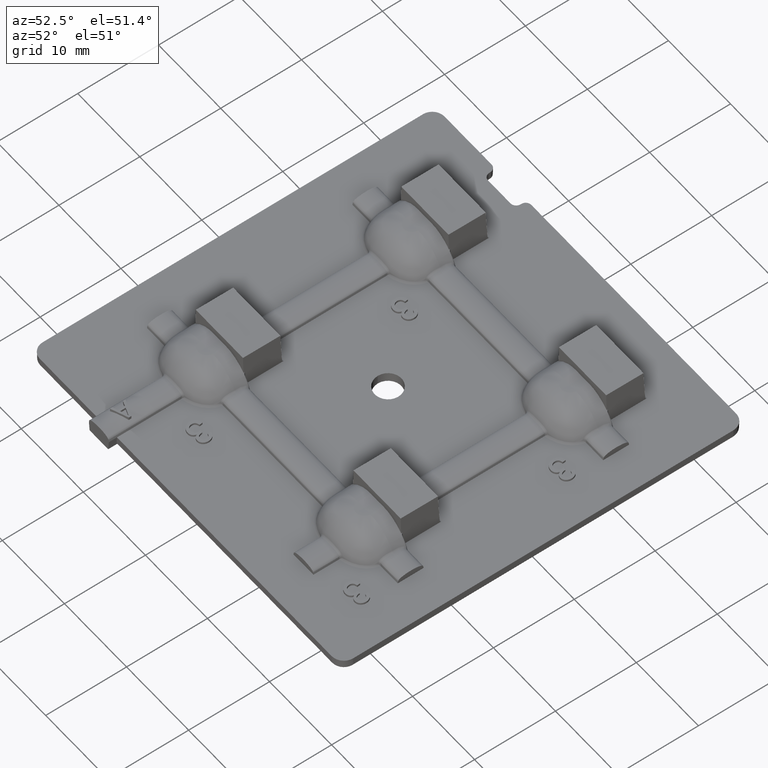
[diagram: clean part render]
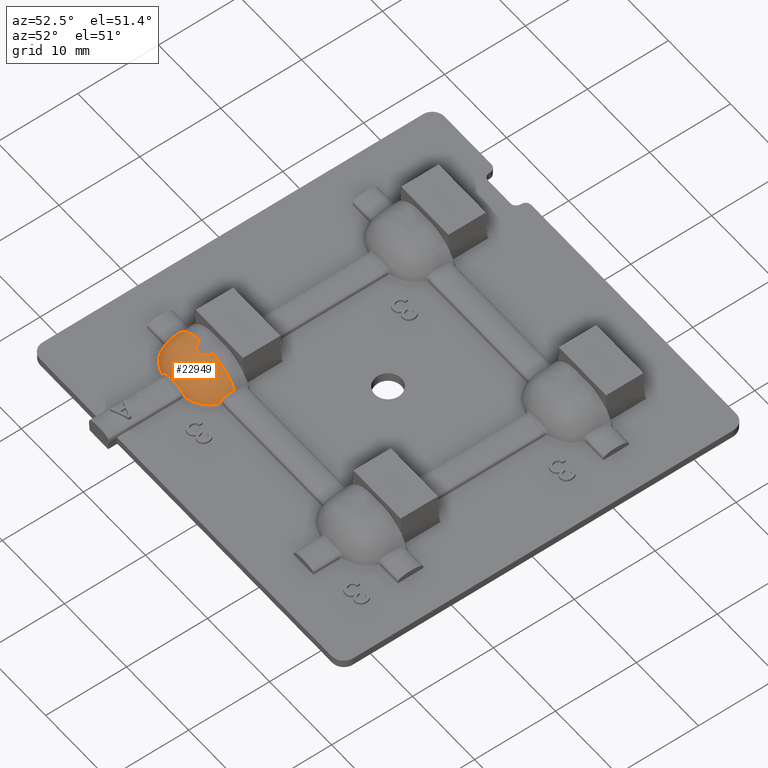
[diagram: same view with one face highlighted and labeled with its STEP entity id]
A machine part, auxiliary view. The second image highlights one B-rep face of the part: STEP entity #22949.
In plain terms, the highlighted face is a freeform B-spline surface patch.
Its self-contained STEP definition (entity closure, byte-faithful):
#143 = CARTESIAN_POINT ( 'NONE',  ( -12.43749215839888400, -13.69999774898290400, 4.399784544075322900 ) ) ;
#275 = CARTESIAN_POINT ( 'NONE',  ( -15.06595796831597900, -16.61086628397175200, 1.392148092561917000 ) ) ;
#367 = CARTESIAN_POINT ( 'NONE',  ( -13.66918963215767100, -12.95761248539483800, 4.400000000000001200 ) ) ;
#460 = CARTESIAN_POINT ( 'NONE',  ( -16.10104831315678800, -14.94880724650813700, 4.288021521516926200 ) ) ;
#560 = CARTESIAN_POINT ( 'NONE',  ( -13.96148661160987100, -17.04307346552607800, 2.542874125920664900 ) ) ;
#648 = CARTESIAN_POINT ( 'NONE',  ( -11.45747269431418200, -17.05256596988752800, 0.2000000000000022600 ) ) ;
#745 = CARTESIAN_POINT ( 'NONE',  ( -11.81173758152823400, -13.16148436075290300, 4.400000000000004800 ) ) ;
#798 = CARTESIAN_POINT ( 'NONE',  ( -8.990662189987235200, -15.78775470054132800, 1.386657370514009500 ) ) ;
#834 = CARTESIAN_POINT ( 'NONE',  ( -9.456544817270359000, -13.25463290698096600, 4.366357422317730800 ) ) ;
#906 = CARTESIAN_POINT ( 'NONE',  ( -8.202374835301103700, -14.41976141333100600, 1.477068846094768700 ) ) ;
#1081 = ORIENTED_EDGE ( 'NONE', *, *, #25119, .T. ) ;
#1484 = VERTEX_POINT ( 'NONE', #16504 ) ;
#1899 = CARTESIAN_POINT ( 'NONE',  ( -8.253848618063608800, -14.25607833452763300, 1.751718455772700800 ) ) ;
#2134 = CARTESIAN_POINT ( 'NONE',  ( -10.96157245102402000, -16.76510965602518200, 1.493884396673184700 ) ) ;
#2156 = ORIENTED_EDGE ( 'NONE', *, *, #11121, .F. ) ;
#2251 = CARTESIAN_POINT ( 'NONE',  ( -12.17734945908384200, -13.59184172140132300, 4.399704041028616800 ) ) ;
#2301 = CARTESIAN_POINT ( 'NONE',  ( -17.12110019471691700, -14.73870700213821800, 1.379381091858283800 ) ) ;
#2304 = CARTESIAN_POINT ( 'NONE',  ( -13.70000005894078600, -12.70000026282877700, 4.399899496562288600 ) ) ;
#2371 = EDGE_CURVE ( 'NONE', #1484, #23416, #13131, .T. ) ;
#2398 = CARTESIAN_POINT ( 'NONE',  ( -14.45664289320486500, -16.78518610639559900, 1.394284250590120700 ) ) ;
#2495 = CARTESIAN_POINT ( 'NONE',  ( -17.49777523247420400, -14.01050357524347900, 2.093776231945073000 ) ) ;
#2579 = CARTESIAN_POINT ( 'NONE',  ( -16.84783609921427300, -15.57791420905986600, 0.2000000000000022600 ) ) ;
#2670 = CARTESIAN_POINT ( 'NONE',  ( -12.78726641383264000, -13.70000000000000600, 4.400000000000003000 ) ) ;
#2764 = CARTESIAN_POINT ( 'NONE',  ( -10.43856545403480300, -15.62028915319846500, 4.310754748777506900 ) ) ;
#2845 = CARTESIAN_POINT ( 'NONE',  ( -8.273044165719992900, -15.01386249380409900, 1.878000377268276700 ) ) ;
#2902 = CARTESIAN_POINT ( 'NONE',  ( -8.416329171034147900, -15.02684879881821400, 1.381510598407341300 ) ) ;
#2914 = VERTEX_POINT ( 'NONE', #18358 ) ;
#2937 = CARTESIAN_POINT ( 'NONE',  ( -7.720854712020560000, -13.36479265166322600, 0.2000000000000022600 ) ) ;
#3214 = ORIENTED_EDGE ( 'NONE', *, *, #6714, .F. ) ;
#3290 = VERTEX_POINT ( 'NONE', #11087 ) ;
#3325 = EDGE_CURVE ( 'NONE', #20411, #1484, #16621, .T. ) ;
#3492 = CARTESIAN_POINT ( 'NONE',  ( -13.83124642636141900, -16.73002394464879200, 1.995828089385227800 ) ) ;
#3495 = CARTESIAN_POINT ( 'NONE',  ( -11.70000008946625800, -12.70000348917988700, 4.399847215909710000 ) ) ;
#3581 = ORIENTED_EDGE ( 'NONE', *, *, #12846, .T. ) ;
#3587 = CARTESIAN_POINT ( 'NONE',  ( -13.98481480958493600, -16.72497055709726200, 1.939514170238045600 ) ) ;
#3633 = CARTESIAN_POINT ( 'NONE',  ( -14.06103970265316900, -16.72301514700637900, 1.905620839005102200 ) ) ;
#3884 = CARTESIAN_POINT ( 'NONE',  ( -8.175298265472323000, -14.43692834525180900, 1.377734322004338300 ) ) ;
#3988 = CARTESIAN_POINT ( 'NONE',  ( -8.256747050645136800, -13.98000862053931400, 1.927663600121006100 ) ) ;
#4092 = ORIENTED_EDGE ( 'NONE', *, *, #16233, .F. ) ;
#4309 = CARTESIAN_POINT ( 'NONE',  ( -10.94943895658807300, -16.77883971450397400, 1.427550278124105000 ) ) ;
#4345 = CARTESIAN_POINT ( 'NONE',  ( -11.82581169962165600, -13.20290863772976700, 4.399705069793914600 ) ) ;
#4496 = CARTESIAN_POINT ( 'NONE',  ( -17.69999999999999900, -12.70000000000000500, 0.2000000000000022600 ) ) ;
#4585 = CARTESIAN_POINT ( 'NONE',  ( -13.62726864026860000, -13.08205620946785600, 4.400000000000004800 ) ) ;
#4676 = CARTESIAN_POINT ( 'NONE',  ( -15.80132585419174300, -15.33644303003360700, 4.287562336733507200 ) ) ;
#4711 = B_SPLINE_CURVE_WITH_KNOTS ( 'NONE', 3,
 ( #16329, #16079, #17993, #16046 ),
 .UNSPECIFIED., .F., .F.,
 ( 4, 4 ),
 ( 1.301042606982595900E-018, 0.0001032233284219956800 ),
 .UNSPECIFIED. ) ;
#4731 = CARTESIAN_POINT ( 'NONE',  ( -10.96157245102402000, -16.76510965602518200, 1.493884396673184700 ) ) ;
#4768 = CARTESIAN_POINT ( 'NONE',  ( -13.12071680670491200, -17.09999994122215800, 2.653333232968669600 ) ) ;
#4822 = EDGE_CURVE ( 'NONE', #10026, #10665, #22941, .T. ) ;
#4861 = CARTESIAN_POINT ( 'NONE',  ( -10.24382373503792500, -16.77730372870986700, 0.2000000000000022600 ) ) ;
#4871 = EDGE_CURVE ( 'NONE', #2914, #10026, #4711, .T. ) ;
#4902 = VERTEX_POINT ( 'NONE', #15638 ) ;
#4943 = CARTESIAN_POINT ( 'NONE',  ( -11.77273138819485300, -13.08205627545143600, 4.400000000000003000 ) ) ;
#5001 = CARTESIAN_POINT ( 'NONE',  ( -8.175298265472323000, -14.43692834525180900, 1.377734322004338300 ) ) ;
#5037 = CARTESIAN_POINT ( 'NONE',  ( -9.615285220660691600, -12.88486047766554600, 4.388785807439241200 ) ) ;
#5215 = ORIENTED_EDGE ( 'NONE', *, *, #12184, .T. ) ;
#5771 = B_SPLINE_CURVE_WITH_KNOTS ( 'NONE', 3,
 ( #12228, #14278, #6168, #20339, #8191, #22369, #10265, #24395 ),
 .UNSPECIFIED., .F., .F.,
 ( 4, 2, 2, 4 ),
 ( 0.0000000000000000000, 0.4120684121976059800, 0.8241368243952119600, 1.648273648790419900 ),
 .UNSPECIFIED. ) ;
#5851 = CARTESIAN_POINT ( 'NONE',  ( -17.22470180933332500, -14.43692833753385200, 1.377734330437526500 ) ) ;
#6010 = CARTESIAN_POINT ( 'NONE',  ( -8.232238360579975400, -13.50816285962561700, 2.053588351499695100 ) ) ;
#6168 = CARTESIAN_POINT ( 'NONE',  ( -13.67413220244340100, -12.96106193709754500, 4.399771922401212600 ) ) ;
#6343 = CARTESIAN_POINT ( 'NONE',  ( -11.70000048133620400, -12.83051076903109200, 4.399731693037543000 ) ) ;
#6402 = CARTESIAN_POINT ( 'NONE',  ( -13.69999999999999900, -12.70000000000000500, 4.400000000000004800 ) ) ;
#6450 = CARTESIAN_POINT ( 'NONE',  ( -17.22470180933332500, -14.43692833753385200, 1.377734330437526500 ) ) ;
#6484 = CARTESIAN_POINT ( 'NONE',  ( -15.78471482431140200, -12.88486049162026400, 4.388785805841323800 ) ) ;
#6570 = CARTESIAN_POINT ( 'NONE',  ( -17.31155056179203900, -14.63168747808980400, 1.935125871910845100 ) ) ;
#6616 = CARTESIAN_POINT ( 'NONE',  ( -17.21606636490827600, -14.43118479641489000, 1.410946040232075700 ) ) ;
#6647 = CARTESIAN_POINT ( 'NONE',  ( -16.27546755874895700, -16.20312649830771800, 0.2000000000000022600 ) ) ;
#6714 = EDGE_CURVE ( 'NONE', #9415, #14658, #23732, .T. ) ;
#6731 = CARTESIAN_POINT ( 'NONE',  ( -12.61273348997574600, -13.70000000000000600, 4.400000000000004800 ) ) ;
#6825 = CARTESIAN_POINT ( 'NONE',  ( -9.598673635718808900, -15.33644335871178300, 4.287562316111323200 ) ) ;
#6874 = CARTESIAN_POINT ( 'NONE',  ( -17.19762524394012700, -14.41976140544873500, 1.477068853850179500 ) ) ;
#6896 = B_SPLINE_CURVE_WITH_KNOTS ( 'NONE', 3,
 ( #16514, #2301, #8439, #22612, #10506, #24638, #12552, #275, #14600, #2398 ),
 .UNSPECIFIED., .F., .F.,
 ( 4, 2, 2, 2, 4 ),
 ( 0.0000000000000000000, 0.0009515497106641801700, 0.001903099421328360300, 0.002854649131992540500, 0.003806198842656725900 ),
 .UNSPECIFIED. ) ;
#6907 = CARTESIAN_POINT ( 'NONE',  ( -8.088449578348033200, -14.63168742656796100, 1.935125940144107700 ) ) ;
#6991 = CARTESIAN_POINT ( 'NONE',  ( -7.699999999999998400, -12.92154611096210800, 0.2000000000000022600 ) ) ;
#7027 = CARTESIAN_POINT ( 'NONE',  ( -8.200228256821901600, -12.70000000000000500, 2.116769539470084300 ) ) ;
#7402 = ORIENTED_EDGE ( 'NONE', *, *, #4871, .T. ) ;
#8012 = CARTESIAN_POINT ( 'NONE',  ( -8.214267783851481000, -13.10616316763442600, 2.101234485628416900 ) ) ;
#8191 = CARTESIAN_POINT ( 'NONE',  ( -13.50022653145815000, -13.31379918004842900, 4.399760891849290100 ) ) ;
#8439 = CARTESIAN_POINT ( 'NONE',  ( -16.98399521031473100, -15.02697877503641500, 1.381512082924119600 ) ) ;
#8447 = VERTEX_POINT ( 'NONE', #20129 ) ;
#8527 = CARTESIAN_POINT ( 'NONE',  ( -17.69999999999999900, -12.92154619007213200, 0.2000000000000022600 ) ) ;
#8615 = CARTESIAN_POINT ( 'NONE',  ( -13.58826243476650400, -13.16148433252958200, 4.400000000000004800 ) ) ;
#8662 = FACE_OUTER_BOUND ( 'NONE', #17046, .T. ) ;
#8698 = CARTESIAN_POINT ( 'NONE',  ( -14.96143384727281700, -15.62028888134772900, 4.310754746135072100 ) ) ;
#8792 = CARTESIAN_POINT ( 'NONE',  ( -12.27928272954934400, -17.10000005877791900, 2.653333433698229300 ) ) ;
#8881 = CARTESIAN_POINT ( 'NONE',  ( -9.124532327418943800, -16.20312648573786200, 0.2000000000000022600 ) ) ;
#8926 = CARTESIAN_POINT ( 'NONE',  ( -10.94335708462761400, -16.78518633064484800, 1.394284285829841400 ) ) ;
#8963 = CARTESIAN_POINT ( 'NONE',  ( -11.73081038673850400, -12.95761255917689400, 4.400000000000004800 ) ) ;
#9059 = CARTESIAN_POINT ( 'NONE',  ( -9.699999999999997500, -12.70000000000000500, 4.399999999999995900 ) ) ;
#9415 = VERTEX_POINT ( 'NONE', #3495 ) ;
#9469 = CARTESIAN_POINT ( 'NONE',  ( -17.19762524394012700, -14.41976140544873500, 1.477068853850179500 ) ) ;
#9506 = CARTESIAN_POINT ( 'NONE',  ( -17.17769846950174500, -14.39932969445162700, 1.555136975677740000 ) ) ;
#9534 = CARTESIAN_POINT ( 'NONE',  ( -17.16275288937904300, -14.36159867838678200, 1.628521162607742500 ) ) ;
#9587 = CARTESIAN_POINT ( 'NONE',  ( -17.14602615902248700, -14.25471544597203000, 1.753009278442049700 ) ) ;
#9621 = CARTESIAN_POINT ( 'NONE',  ( -17.14340842695304800, -14.18888036856280400, 1.803639774821244500 ) ) ;
#9646 = CARTESIAN_POINT ( 'NONE',  ( -17.14337435557811400, -13.97654638217014300, 1.929176188397404800 ) ) ;
#9682 = CARTESIAN_POINT ( 'NONE',  ( -17.15232887310411800, -13.81783220740046600, 1.979736724485238400 ) ) ;
#9724 = CARTESIAN_POINT ( 'NONE',  ( -17.16798402162181200, -13.50376344160531700, 2.054350707340398200 ) ) ;
#9747 = CARTESIAN_POINT ( 'NONE',  ( -17.17579013770457400, -13.34470467261187400, 2.077920953282488700 ) ) ;
#9782 = CARTESIAN_POINT ( 'NONE',  ( -17.18914352416137700, -13.02415366919275600, 2.109190517025050200 ) ) ;
#9835 = CARTESIAN_POINT ( 'NONE',  ( -17.19976240379727300, -12.70000000000000500, 2.116763795967285600 ) ) ;
#10011 = CARTESIAN_POINT ( 'NONE',  ( -17.19486910041552400, -12.86090691566398000, 2.116555577738134200 ) ) ;
#10013 = CARTESIAN_POINT ( 'NONE',  ( -8.192960502807743200, -14.42546183968453000, 1.444061992918546100 ) ) ;
#10026 = VERTEX_POINT ( 'NONE', #25087 ) ;
#10108 = CARTESIAN_POINT ( 'NONE',  ( -8.205363164702657000, -12.86259821634707000, 2.114726627202968800 ) ) ;
#10265 = CARTESIAN_POINT ( 'NONE',  ( -12.96259697139794700, -13.69999457719452500, 4.399894056658403900 ) ) ;
#10506 = CARTESIAN_POINT ( 'NONE',  ( -16.40651947271352600, -15.79027440243628200, 1.386672212341433700 ) ) ;
#10597 = CARTESIAN_POINT ( 'NONE',  ( -15.94345531512595600, -13.25463295019792500, 4.366357417523982300 ) ) ;
#10665 = VERTEX_POINT ( 'NONE', #4731 ) ;
#10689 = CARTESIAN_POINT ( 'NONE',  ( -17.12695594946694300, -15.01386240226511500, 1.878000346942378700 ) ) ;
#10772 = CARTESIAN_POINT ( 'NONE',  ( -15.15617672385181300, -16.77730351579214800, 0.2000000000000022600 ) ) ;
#10863 = CARTESIAN_POINT ( 'NONE',  ( -12.43776476145339200, -13.67701030261937200, 4.400000000000004800 ) ) ;
#10955 = CARTESIAN_POINT ( 'NONE',  ( -9.298951531670297800, -14.94880743451142300, 4.288021507226763300 ) ) ;
#11012 = CARTESIAN_POINT ( 'NONE',  ( -10.33281264477713200, -16.61054476721551500, 1.392143954843056800 ) ) ;
#11054 = CARTESIAN_POINT ( 'NONE',  ( -7.902224926342883600, -14.01050344787140900, 2.093776305864436500 ) ) ;
#11087 = CARTESIAN_POINT ( 'NONE',  ( -13.70000005894078600, -12.70000026282877700, 4.399899496562288600 ) ) ;
#11121 = EDGE_CURVE ( 'NONE', #3290, #4902, #5771, .T. ) ;
#11135 = CARTESIAN_POINT ( 'NONE',  ( -7.699999999999998400, -12.70000000000000500, 0.2000000000000022600 ) ) ;
#11391 = EDGE_CURVE ( 'NONE', #8447, #14658, #11633, .T. ) ;
#11633 = B_SPLINE_CURVE_WITH_KNOTS ( 'NONE', 3,
 ( #906, #12052, #14094, #1899, #16131, #3988, #18150, #6010, #20178, #8012, #22194, #10108, #24224, #12140 ),
 .UNSPECIFIED., .F., .F.,
 ( 4, 2, 2, 2, 2, 2, 4 ),
 ( 0.0000000000000000000, 0.0002478455170098596800, 0.0004956910340197193700, 0.0009913820680394387400, 0.001487073102059158200, 0.001734918619069020200, 0.001982764136078882200 ),
 .UNSPECIFIED. ) ;
#12052 = CARTESIAN_POINT ( 'NONE',  ( -8.222187065973862700, -14.39944715212693500, 1.554688200758558500 ) ) ;
#12140 = CARTESIAN_POINT ( 'NONE',  ( -8.200228256821901600, -12.70000000000000500, 2.116769539470084300 ) ) ;
#12143 = EDGE_CURVE ( 'NONE', #10665, #22570, #12627, .T. ) ;
#12184 = EDGE_CURVE ( 'NONE', #23416, #2914, #6896, .T. ) ;
#12228 = CARTESIAN_POINT ( 'NONE',  ( -13.70000005894078600, -12.70000026282877700, 4.399899496562288600 ) ) ;
#12552 = CARTESIAN_POINT ( 'NONE',  ( -15.64277959787312100, -16.34843472545619400, 1.390049678317170700 ) ) ;
#12627 = B_SPLINE_CURVE_WITH_KNOTS ( 'NONE', 3,
 ( #2134, #14425, #4309, #18481 ),
 .UNSPECIFIED., .F., .F.,
 ( 4, 4 ),
 ( 2.168404344970993500E-019, 0.0001032233235114298800 ),
 .UNSPECIFIED. ) ;
#12647 = CARTESIAN_POINT ( 'NONE',  ( -17.67914527199916800, -13.36479289304253700, 0.2000000000000022600 ) ) ;
#12730 = CARTESIAN_POINT ( 'NONE',  ( -13.52281258836787000, -13.27484679183959500, 4.400000000000003000 ) ) ;
#12817 = CARTESIAN_POINT ( 'NONE',  ( -13.88637727979307000, -15.70375811814597400, 4.339407152786908000 ) ) ;
#12846 = EDGE_CURVE ( 'NONE', #22570, #21831, #13949, .T. ) ;
#12905 = CARTESIAN_POINT ( 'NONE',  ( -11.43851309295266600, -17.04307383270338900, 2.542874484596963700 ) ) ;
#12994 = CARTESIAN_POINT ( 'NONE',  ( -8.552163814679440500, -15.57791407060912900, 0.2000000000000022600 ) ) ;
#13040 = CARTESIAN_POINT ( 'NONE',  ( -9.482196941146467500, -16.18534140222168800, 1.389016397712826900 ) ) ;
#13078 = CARTESIAN_POINT ( 'NONE',  ( -11.70560637692213200, -12.82967397667050200, 4.400000000000004800 ) ) ;
#13131 = B_SPLINE_CURVE_WITH_KNOTS ( 'NONE', 3,
 ( #6874, #22920, #6616, #6450 ),
 .UNSPECIFIED., .F., .F.,
 ( 4, 4 ),
 ( 0.0000000000000000000, 0.0001043800339735807400 ),
 .UNSPECIFIED. ) ;
#13185 = CARTESIAN_POINT ( 'NONE',  ( -8.200228256821901600, -12.70000000000000500, 2.116769539470084300 ) ) ;
#13209 = CARTESIAN_POINT ( 'NONE',  ( -8.318346879614072300, -12.70000000000000600, 2.341761078581415100 ) ) ;
#13217 = CARTESIAN_POINT ( 'NONE',  ( -8.462569520922073700, -12.70000000000000500, 2.553963216746706800 ) ) ;
#13246 = CARTESIAN_POINT ( 'NONE',  ( -8.688936779519639900, -12.70000000000000500, 2.887028925773853100 ) ) ;
#13275 = CARTESIAN_POINT ( 'NONE',  ( -8.970732435953163300, -12.70000000000000500, 3.174684623714169300 ) ) ;
#13280 = CARTESIAN_POINT ( 'NONE',  ( -9.249323211014337100, -12.70000000000000500, 3.459068793627218900 ) ) ;
#13304 = CARTESIAN_POINT ( 'NONE',  ( -9.570053847210410000, -12.70000000000000500, 3.686062137185702500 ) ) ;
#13356 = CARTESIAN_POINT ( 'NONE',  ( -9.890652832668873600, -12.70000000000000500, 3.912962306479713900 ) ) ;
#13389 = CARTESIAN_POINT ( 'NONE',  ( -10.23903685780654800, -12.70000000000000500, 4.071667347089793900 ) ) ;
#13397 = CARTESIAN_POINT ( 'NONE',  ( -10.59108209338049100, -12.70000000000000500, 4.232040238430814200 ) ) ;
#13421 = CARTESIAN_POINT ( 'NONE',  ( -11.70000008946625800, -12.70000348917988700, 4.399847215909710000 ) ) ;
#13451 = CARTESIAN_POINT ( 'NONE',  ( -11.32846510539708400, -12.70000000000000500, 4.399735882007879800 ) ) ;
#13596 = CARTESIAN_POINT ( 'NONE',  ( -10.95618457085425800, -12.70000000000000500, 4.315071843354966000 ) ) ;
#13949 = B_SPLINE_CURVE_WITH_KNOTS ( 'NONE', 3,
 ( #8926, #21057, #11012, #25131, #13040, #798, #15083, #2902, #17093, #5001 ),
 .UNSPECIFIED., .F., .F.,
 ( 4, 2, 2, 2, 4 ),
 ( 0.0000000000000000000, 0.0009512693086330179400, 0.001902538617266035900, 0.002853807925899047000, 0.003805077234532058300 ),
 .UNSPECIFIED. ) ;
#14094 = CARTESIAN_POINT ( 'NONE',  ( -8.237082884510101600, -14.36207668350260700, 1.627662690096569400 ) ) ;
#14278 = CARTESIAN_POINT ( 'NONE',  ( -13.70000001249813500, -12.83055217458182500, 4.399930701707979200 ) ) ;
#14402 = B_SPLINE_SURFACE_WITH_KNOTS ( 'NONE', 3, 3, ( 
 ( #6402, #18577, #16601, #4496 ),
 ( #18668, #6484, #20668, #8527 ),
 ( #22707, #10597, #24724, #12647 ),
 ( #367, #14689, #2495, #16695 ),
 ( #4585, #18742, #6570, #20751 ),
 ( #8615, #22782, #10689, #24807 ),
 ( #12730, #460, #14775, #2579 ),
 ( #16776, #4676, #18826, #6647 ),
 ( #20846, #8698, #22870, #10772 ),
 ( #24902, #12817, #560, #14860 ),
 ( #2670, #16861, #4768, #18910 ),
 ( #6731, #20927, #8792, #22948 ),
 ( #10863, #24988, #12905, #648 ),
 ( #14948, #2764, #16949, #4861 ),
 ( #19003, #6825, #21007, #8881 ),
 ( #23042, #10955, #25075, #12994 ),
 ( #745, #15035, #2845, #17041 ),
 ( #4943, #19085, #6907, #21101 ),
 ( #8963, #23119, #11054, #25166 ),
 ( #13078, #834, #15126, #2937 ),
 ( #17134, #5037, #19172, #6991 ),
 ( #21184, #9059, #23215, #11135 ) ),
 .UNSPECIFIED., .F., .F., .F.,
 ( 4, 1, 1, 1, 2, 1, 1, 1, 2, 1, 1, 1, 2, 1, 1, 1, 4 ),
 ( 4, 4 ),
 ( 0.0000000000000000000, 0.04246958582425625100, 0.08493917164851250100, 0.1274087574727687500, 0.1698783432970250000, 0.2524087121481795000, 0.3349390809993338900, 0.4174694498504881700, 0.4999998187016426700, 0.5825302785239836500, 0.6650607383463246200, 0.7475911981686654800, 0.8301216579910064600, 0.8725912434932547900, 0.9150608289955032300, 0.9575304144977516700, 1.000000000000000000 ),
 ( 0.0000000000000000000, 1.000000000000000000 ),
 .UNSPECIFIED. ) ;
#14425 = CARTESIAN_POINT ( 'NONE',  ( -10.95551151641884500, -16.77214884064064600, 1.460754200507658800 ) ) ;
#14520 = CARTESIAN_POINT ( 'NONE',  ( -15.10659093180335900, -12.70000000000000500, 4.399921194804368200 ) ) ;
#14600 = CARTESIAN_POINT ( 'NONE',  ( -14.76578384151349800, -16.71018367555885600, 1.393219466311314400 ) ) ;
#14658 = VERTEX_POINT ( 'NONE', #7027 ) ;
#14689 = CARTESIAN_POINT ( 'NONE',  ( -16.12145092994391500, -13.78975400605999500, 4.335515320028890500 ) ) ;
#14775 = CARTESIAN_POINT ( 'NONE',  ( -16.80792490047474200, -15.54206696048706100, 1.841653853740653300 ) ) ;
#14860 = CARTESIAN_POINT ( 'NONE',  ( -13.94252815106733200, -17.05256586631732000, 0.2000000000000022600 ) ) ;
#14948 = CARTESIAN_POINT ( 'NONE',  ( -12.19297935816491900, -13.57532092453737400, 4.400000000000001200 ) ) ;
#15035 = CARTESIAN_POINT ( 'NONE',  ( -9.205848798147584900, -14.57058149667520100, 4.299047747297857200 ) ) ;
#15083 = CARTESIAN_POINT ( 'NONE',  ( -8.769958230540210000, -15.54845431608740600, 1.385166093020794100 ) ) ;
#15126 = CARTESIAN_POINT ( 'NONE',  ( -7.793601123547225600, -13.36132273511162100, 2.301068019189157300 ) ) ;
#15638 = CARTESIAN_POINT ( 'NONE',  ( -12.69999942656256300, -13.69999808168060600, 4.399919645476549200 ) ) ;
#15822 = EDGE_CURVE ( 'NONE', #4902, #9415, #20424, .T. ) ;
#16023 = CARTESIAN_POINT ( 'NONE',  ( -8.183933711426565300, -14.43118480419464900, 1.410946032029574400 ) ) ;
#16046 = CARTESIAN_POINT ( 'NONE',  ( -14.43842752539947800, -16.76510941776727700, 1.493884363441218900 ) ) ;
#16079 = CARTESIAN_POINT ( 'NONE',  ( -14.45056102075886200, -16.77883948546248000, 1.427550243574369400 ) ) ;
#16131 = CARTESIAN_POINT ( 'NONE',  ( -8.256528830030585900, -14.19080828348697700, 1.802225757862841300 ) ) ;
#16233 = EDGE_CURVE ( 'NONE', #20411, #3290, #23977, .T. ) ;
#16329 = CARTESIAN_POINT ( 'NONE',  ( -14.45664289320486500, -16.78518610639559900, 1.394284250590120700 ) ) ;
#16439 = CARTESIAN_POINT ( 'NONE',  ( -17.19976240379727300, -12.70000000000000500, 2.116763795967285600 ) ) ;
#16465 = CARTESIAN_POINT ( 'NONE',  ( -11.89984473176031400, -13.31391072146818600, 4.399717684537780100 ) ) ;
#16467 = CARTESIAN_POINT ( 'NONE',  ( -10.96157245102402000, -16.76510965602518200, 1.493884396673184700 ) ) ;
#16475 = CARTESIAN_POINT ( 'NONE',  ( -10.98311950021423100, -16.75005118709736300, 1.572864959865763400 ) ) ;
#16504 = CARTESIAN_POINT ( 'NONE',  ( -17.19762524394012700, -14.41976140544873500, 1.477068853850179500 ) ) ;
#16514 = CARTESIAN_POINT ( 'NONE',  ( -17.22470180933332500, -14.43692833753385200, 1.377734330437526500 ) ) ;
#16518 = CARTESIAN_POINT ( 'NONE',  ( -11.02279401544622000, -16.73850273976793100, 1.646935349888567300 ) ) ;
#16547 = CARTESIAN_POINT ( 'NONE',  ( -11.12967134602860100, -16.72555833081930000, 1.769654301239137700 ) ) ;
#16552 = CARTESIAN_POINT ( 'NONE',  ( -11.19629425114746900, -16.72324791557002400, 1.820962228282687400 ) ) ;
#16576 = CARTESIAN_POINT ( 'NONE',  ( -11.40858125686542700, -16.72286752652770800, 1.947118071155078400 ) ) ;
#16582 = CARTESIAN_POINT ( 'NONE',  ( -11.56663995219342000, -16.73001688518202100, 1.998989878674546400 ) ) ;
#16598 = CARTESIAN_POINT ( 'NONE',  ( -11.88511943213932300, -16.74248534260799200, 2.076851085987362100 ) ) ;
#16601 = CARTESIAN_POINT ( 'NONE',  ( -17.64480428971795700, -12.70000000000000500, 2.532680406316073300 ) ) ;
#16621 = B_SPLINE_CURVE_WITH_KNOTS ( 'NONE', 3,
 ( #9835, #10011, #9782, #9747, #9724, #9682, #9646, #9621, #9587, #9534, #9506, #9469 ),
 .UNSPECIFIED., .F., .F.,
 ( 4, 2, 2, 2, 2, 4 ),
 ( -5.999999999715092000E-008, 0.0004828842490822466800, 0.0009658284981644905200, 0.001448772747246734400, 0.001690244871787855900, 0.001931716996328977600 ),
 .UNSPECIFIED. ) ;
#16640 = CARTESIAN_POINT ( 'NONE',  ( -12.04823505627554800, -16.74845614180807000, 2.101895477630398200 ) ) ;
#16664 = CARTESIAN_POINT ( 'NONE',  ( -12.37295201357156700, -16.75626626777413700, 2.134574552181449200 ) ) ;
#16671 = CARTESIAN_POINT ( 'NONE',  ( -12.53572077662736500, -16.75827003540685200, 2.142144076076666800 ) ) ;
#16695 = CARTESIAN_POINT ( 'NONE',  ( -17.57265329121499100, -14.01991273115177500, 0.2000000000000057300 ) ) ;
#16721 = CARTESIAN_POINT ( 'NONE',  ( -12.86197020937327000, -16.75828817121185200, 2.142217353003855500 ) ) ;
#16727 = CARTESIAN_POINT ( 'NONE',  ( -13.02579908352780300, -16.75629505809798300, 2.134694366106481700 ) ) ;
#16756 = CARTESIAN_POINT ( 'NONE',  ( -13.35270132918277500, -16.74843466830120800, 2.101807081698648300 ) ) ;
#16761 = CARTESIAN_POINT ( 'NONE',  ( -13.51539384243379000, -16.74246487895306100, 2.076704982678629000 ) ) ;
#16774 = CARTESIAN_POINT ( 'NONE',  ( -13.75300406608444300, -16.73316271069843700, 2.018645382693015300 ) ) ;
#16776 = CARTESIAN_POINT ( 'NONE',  ( -13.41642245910766600, -13.41400962923881400, 4.400000000000001200 ) ) ;
#16797 = CARTESIAN_POINT ( 'NONE',  ( -14.20257012557458300, -16.72322288096086100, 1.821758607014980300 ) ) ;
#16805 = CARTESIAN_POINT ( 'NONE',  ( -14.26932493296453700, -16.72547040307014000, 1.770658344303114800 ) ) ;
#16827 = CARTESIAN_POINT ( 'NONE',  ( -14.43842752539947800, -16.76510941776727700, 1.493884363441218900 ) ) ;
#16856 = CARTESIAN_POINT ( 'NONE',  ( -14.41681633363498500, -16.75000611264946600, 1.573100038074734400 ) ) ;
#16861 = CARTESIAN_POINT ( 'NONE',  ( -13.09549707881525500, -15.69937159834496400, 4.349867962504033500 ) ) ;
#16894 = CARTESIAN_POINT ( 'NONE',  ( -14.37726012933207700, -16.73847545115990000, 1.647020210976118300 ) ) ;
#16949 = CARTESIAN_POINT ( 'NONE',  ( -10.22699829551119600, -16.74020206536836900, 2.220496402383150200 ) ) ;
#17041 = CARTESIAN_POINT ( 'NONE',  ( -8.217287211711713700, -15.03946421442148400, 0.2000000000000022600 ) ) ;
#17046 = EDGE_LOOP ( 'NONE', ( #1081, #19060, #3214, #20921, #2156, #4092, #24576, #20394, #5215, #7402, #21413, #23333, #3581 ) ) ;
#17093 = CARTESIAN_POINT ( 'NONE',  ( -8.278895761643180900, -14.73869504177423400, 1.379381019476602300 ) ) ;
#17134 = CARTESIAN_POINT ( 'NONE',  ( -11.69999999999999900, -12.74322464169414800, 4.400000000000004800 ) ) ;
#17993 = CARTESIAN_POINT ( 'NONE',  ( -14.44448846045875500, -16.77214860693005600, 1.460754166624960400 ) ) ;
#18150 = CARTESIAN_POINT ( 'NONE',  ( -8.247895012624006500, -13.82238393171939500, 1.978364362727942100 ) ) ;
#18358 = CARTESIAN_POINT ( 'NONE',  ( -14.45664289320486500, -16.78518610639559900, 1.394284250590120700 ) ) ;
#18481 = CARTESIAN_POINT ( 'NONE',  ( -10.94335708462761400, -16.78518633064484800, 1.394284285829841400 ) ) ;
#18523 = CARTESIAN_POINT ( 'NONE',  ( -11.72586342910106400, -12.96108304509816600, 4.399652270206864600 ) ) ;
#18577 = CARTESIAN_POINT ( 'NONE',  ( -15.69999999999999900, -12.70000000000000500, 4.399999999999997700 ) ) ;
#18668 = CARTESIAN_POINT ( 'NONE',  ( -13.69999999999999900, -12.74322462630208500, 4.400000000000004800 ) ) ;
#18742 = CARTESIAN_POINT ( 'NONE',  ( -16.21118426787211300, -14.28398288625887400, 4.310274192495657400 ) ) ;
#18826 = CARTESIAN_POINT ( 'NONE',  ( -16.26001118521465800, -16.15308712486117000, 1.916116523304822100 ) ) ;
#18910 = CARTESIAN_POINT ( 'NONE',  ( -13.11458094636830300, -17.10000000000000900, 0.2000000000000022600 ) ) ;
#19003 = CARTESIAN_POINT ( 'NONE',  ( -11.98357756100331900, -13.41400963734308700, 4.400000000000008300 ) ) ;
#19060 = ORIENTED_EDGE ( 'NONE', *, *, #11391, .T. ) ;
#19085 = CARTESIAN_POINT ( 'NONE',  ( -9.188815927168819900, -14.28398286197960100, 4.310274199686285900 ) ) ;
#19172 = CARTESIAN_POINT ( 'NONE',  ( -7.762740203485628300, -12.92040661291033000, 2.455476277273767900 ) ) ;
#19405 = CARTESIAN_POINT ( 'NONE',  ( -10.94335708462761400, -16.78518633064484800, 1.394284285829841400 ) ) ;
#19694 = B_SPLINE_CURVE_WITH_KNOTS ( 'NONE', 3,
 ( #3884, #16023, #10013, #24118 ),
 .UNSPECIFIED., .F., .F.,
 ( 4, 4 ),
 ( 0.0000000000000000000, 0.0001043800357421786500 ),
 .UNSPECIFIED. ) ;
#20129 = CARTESIAN_POINT ( 'NONE',  ( -8.202374835301103700, -14.41976141333100600, 1.477068846094768700 ) ) ;
#20178 = CARTESIAN_POINT ( 'NONE',  ( -8.224371988201516700, -13.34834669020644100, 2.077475728512837300 ) ) ;
#20339 = CARTESIAN_POINT ( 'NONE',  ( -13.57428388902303200, -13.20273037465317900, 4.399735997357693900 ) ) ;
#20394 = ORIENTED_EDGE ( 'NONE', *, *, #2371, .T. ) ;
#20411 = VERTEX_POINT ( 'NONE', #24939 ) ;
#20424 = B_SPLINE_CURVE_WITH_KNOTS ( 'NONE', 3,
 ( #24489, #143, #2251, #16465, #4345, #18523, #6343, #20531 ),
 .UNSPECIFIED., .F., .F.,
 ( 4, 2, 2, 4 ),
 ( 1.648273648790419900, 2.472127148648978400, 2.884053898578257800, 3.295980648507536700 ),
 .UNSPECIFIED. ) ;
#20498 = CARTESIAN_POINT ( 'NONE',  ( -16.48589455396667300, -12.70000000000000500, 3.476308672073993300 ) ) ;
#20531 = CARTESIAN_POINT ( 'NONE',  ( -11.70000008946625800, -12.70000348917988700, 4.399847215909710000 ) ) ;
#20668 = CARTESIAN_POINT ( 'NONE',  ( -17.63725983724116400, -12.92040664220734000, 2.455476262110820600 ) ) ;
#20751 = CARTESIAN_POINT ( 'NONE',  ( -17.37790167988678300, -14.65012945765422700, 0.2000000000000022600 ) ) ;
#20846 = CARTESIAN_POINT ( 'NONE',  ( -13.20702055815180400, -13.57532098598626800, 4.400000000000004800 ) ) ;
#20921 = ORIENTED_EDGE ( 'NONE', *, *, #15822, .F. ) ;
#20927 = CARTESIAN_POINT ( 'NONE',  ( -12.30450248523808600, -15.69937159401657200, 4.349867978420314300 ) ) ;
#21007 = CARTESIAN_POINT ( 'NONE',  ( -9.139988603629069200, -16.15308755999140200, 1.916116452538325200 ) ) ;
#21057 = CARTESIAN_POINT ( 'NONE',  ( -10.63395996602871600, -16.71012178116355100, 1.393218622905937300 ) ) ;
#21101 = CARTESIAN_POINT ( 'NONE',  ( -8.022098178342179900, -14.65012912272500300, 0.2000000000000022600 ) ) ;
#21184 = CARTESIAN_POINT ( 'NONE',  ( -11.69999999999999900, -12.70000000000000500, 4.400000000000004800 ) ) ;
#21413 = ORIENTED_EDGE ( 'NONE', *, *, #4822, .T. ) ;
#21831 = VERTEX_POINT ( 'NONE', #23480 ) ;
#22194 = CARTESIAN_POINT ( 'NONE',  ( -8.211137941343096700, -13.02495827876583500, 2.107013991403031500 ) ) ;
#22369 = CARTESIAN_POINT ( 'NONE',  ( -13.22275618619421100, -13.59178019112577300, 4.399892038717843500 ) ) ;
#22570 = VERTEX_POINT ( 'NONE', #19405 ) ;
#22612 = CARTESIAN_POINT ( 'NONE',  ( -16.62585832567994300, -15.55400979373762000, 1.385204436434915000 ) ) ;
#22707 = CARTESIAN_POINT ( 'NONE',  ( -13.69439362728801900, -12.82967393049886700, 4.400000000000006600 ) ) ;
#22782 = CARTESIAN_POINT ( 'NONE',  ( -16.19415131681066500, -14.57058145079855800, 4.299047744102023400 ) ) ;
#22870 = CARTESIAN_POINT ( 'NONE',  ( -15.17300144465471100, -16.74020148037045900, 2.220496215241785100 ) ) ;
#22920 = CARTESIAN_POINT ( 'NONE',  ( -17.20703957500501200, -14.42546183185023200, 1.444062000896246800 ) ) ;
#22941 = B_SPLINE_CURVE_WITH_KNOTS ( 'NONE', 3,
 ( #16827, #16856, #16894, #16805, #16797, #3633, #3587, #3492, #16774, #16761, #16756, #16727, #16721, #16671, #16664, #16640, #16598, #16582, #16576, #16552, #16547, #16518, #16475, #16467 ),
 .UNSPECIFIED., .F., .F.,
 ( 4, 2, 2, 2, 2, 2, 2, 2, 2, 2, 2, 4 ),
 ( 2.168404344971010000E-018, 0.0002495034646389957800, 0.0004990069292779893800, 0.0007485103939169829900, 0.0009980138585559768200, 0.001497020787833964900, 0.001996027717111952800, 0.002495034646389940400, 0.002994041575667928900, 0.003493048504945916600, 0.003742551969584911300, 0.003992055434223905500 ),
 .UNSPECIFIED. ) ;
#22948 = CARTESIAN_POINT ( 'NONE',  ( -12.28541951573929600, -17.10000000000000900, 0.2000000000000022600 ) ) ;
#22949 = ADVANCED_FACE ( 'NONE', ( #8662 ), #14402, .F. ) ;
#23042 = CARTESIAN_POINT ( 'NONE',  ( -11.87718742792686700, -13.27484682006291500, 4.400000000000004800 ) ) ;
#23119 = CARTESIAN_POINT ( 'NONE',  ( -9.278549278880152700, -13.78975394512901300, 4.335515327818739300 ) ) ;
#23215 = CARTESIAN_POINT ( 'NONE',  ( -7.755195710282037200, -12.70000000000000500, 2.532680406316073300 ) ) ;
#23333 = ORIENTED_EDGE ( 'NONE', *, *, #12143, .T. ) ;
#23416 = VERTEX_POINT ( 'NONE', #5851 ) ;
#23480 = CARTESIAN_POINT ( 'NONE',  ( -8.175298265472323000, -14.43692834525180900, 1.377734322004338300 ) ) ;
#23732 = B_SPLINE_CURVE_WITH_KNOTS ( 'NONE', 2,
 ( #13421, #13451, #13596, #13397, #13389, #13356, #13304, #13280, #13275, #13246, #13217, #13209, #13185 ),
 .UNSPECIFIED., .F., .F.,
 ( 3, 2, 2, 2, 2, 2, 3 ),
 ( 0.0000000000000000000, 0.1467491684097266300, 0.2934983368194532000, 0.4402475052291797700, 0.5869966736389064000, 0.7337458420486329100, 0.8252364664405211800 ),
 .UNSPECIFIED. ) ;
#23977 = B_SPLINE_CURVE_WITH_KNOTS ( 'NONE', 3,
 ( #16439, #20498, #14520, #2304 ),
 .UNSPECIFIED., .F., .F.,
 ( 4, 4 ),
 ( 0.1746126486079734900, 1.000000000000000000 ),
 .UNSPECIFIED. ) ;
#24118 = CARTESIAN_POINT ( 'NONE',  ( -8.202374835301103700, -14.41976141333100600, 1.477068846094768700 ) ) ;
#24224 = CARTESIAN_POINT ( 'NONE',  ( -8.202749862649705300, -12.78257693191007900, 2.116667427229987000 ) ) ;
#24395 = CARTESIAN_POINT ( 'NONE',  ( -12.69999942656256300, -13.69999808168060600, 4.399919645476549200 ) ) ;
#24489 = CARTESIAN_POINT ( 'NONE',  ( -12.69999942656256300, -13.69999808168060600, 4.399919645476549200 ) ) ;
#24576 = ORIENTED_EDGE ( 'NONE', *, *, #3325, .T. ) ;
#24638 = CARTESIAN_POINT ( 'NONE',  ( -15.91757734083554300, -16.18528190288783400, 1.389016097731831100 ) ) ;
#24724 = CARTESIAN_POINT ( 'NONE',  ( -17.60639898938302400, -13.36132282570365400, 2.301067973700318800 ) ) ;
#24807 = CARTESIAN_POINT ( 'NONE',  ( -17.18271270505381000, -15.03946434825464500, 0.2000000000000022600 ) ) ;
#24902 = CARTESIAN_POINT ( 'NONE',  ( -12.96223506486396500, -13.67701034956234300, 4.400000000000004800 ) ) ;
#24939 = CARTESIAN_POINT ( 'NONE',  ( -17.19976240379727300, -12.70000000000000500, 2.116763795967285600 ) ) ;
#24988 = CARTESIAN_POINT ( 'NONE',  ( -11.51362208954645900, -15.70375818670411200, 4.339407177474385900 ) ) ;
#25075 = CARTESIAN_POINT ( 'NONE',  ( -8.592075109462499000, -15.54206716965626400, 1.841653768175018700 ) ) ;
#25087 = CARTESIAN_POINT ( 'NONE',  ( -14.43842752539947800, -16.76510941776727700, 1.493884363441218900 ) ) ;
#25119 = EDGE_CURVE ( 'NONE', #21831, #8447, #19694, .T. ) ;
#25131 = CARTESIAN_POINT ( 'NONE',  ( -9.753020349015047300, -16.34628441849616100, 1.390034142233490100 ) ) ;
#25166 = CARTESIAN_POINT ( 'NONE',  ( -7.827346624036984200, -14.01991234403216100, 0.2000000000000022600 ) ) ;